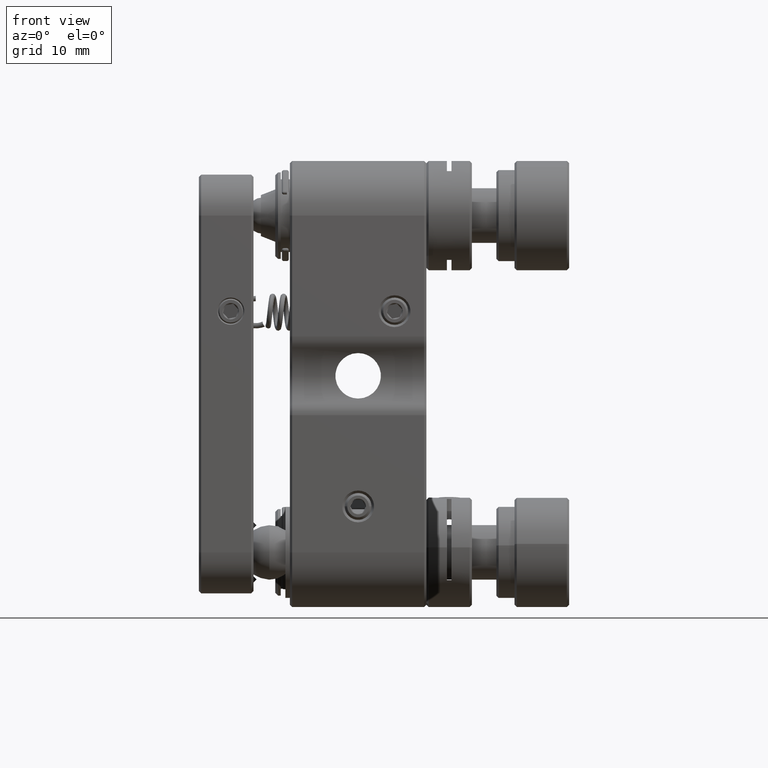
[diagram: clean part render]
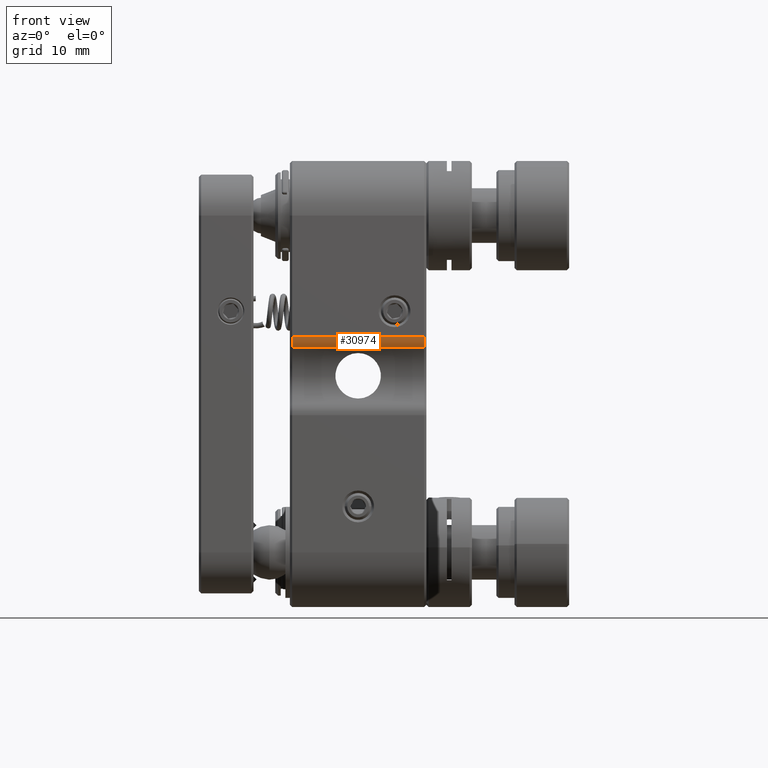
[diagram: same view with one face highlighted and labeled with its STEP entity id]
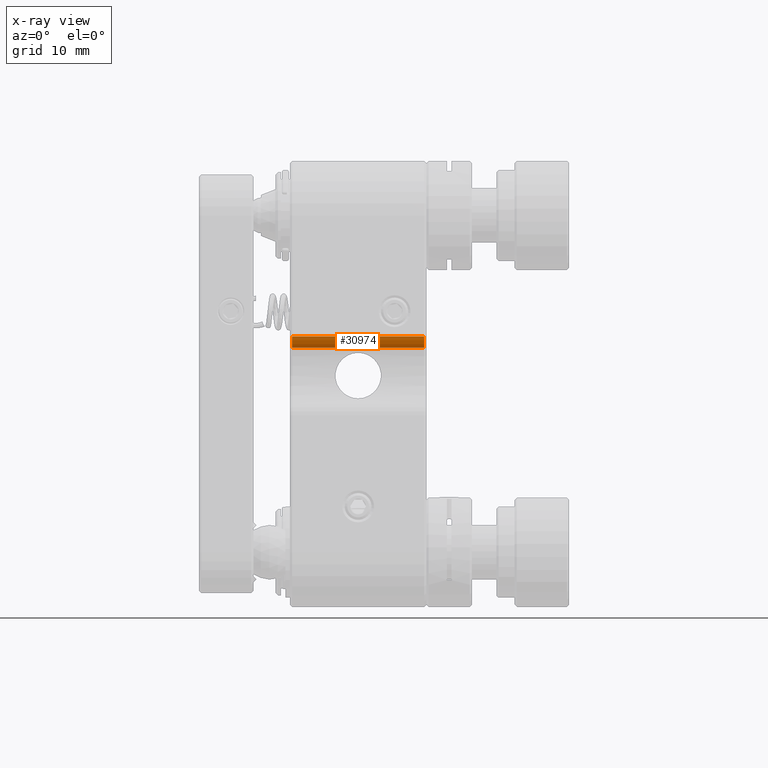
[diagram: x-ray of the same camera — body ghosted, the highlighted face saturated]
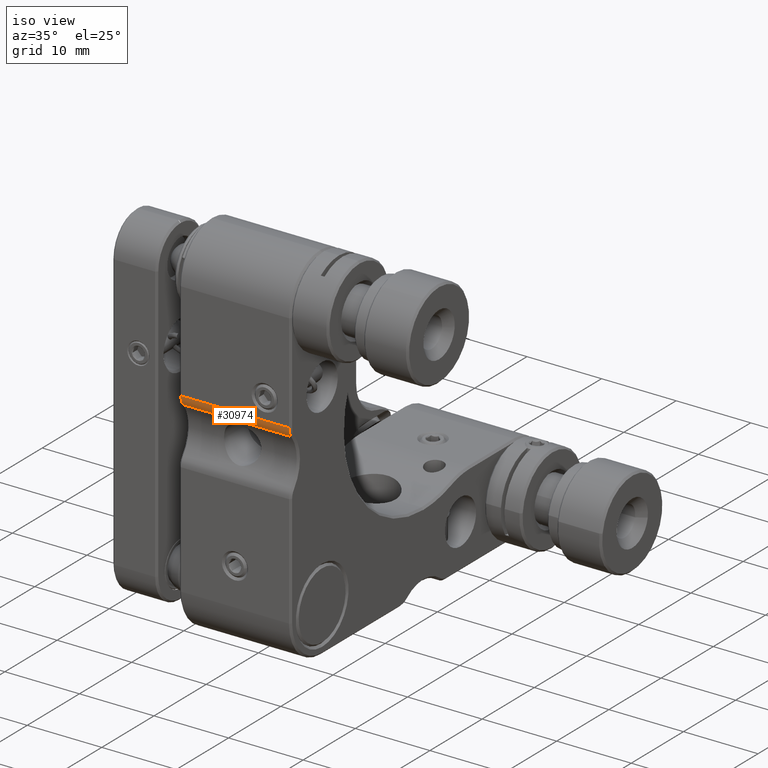
[diagram: same view with one face highlighted and labeled with its STEP entity id]
A machine part, front view. The second image highlights one B-rep face of the part: STEP entity #30974.
The next image is the same camera in x-ray: the body ghosted, the highlighted face saturated — about 0% of this face is hidden behind the body in this view.
A second angle (iso view) of the same face is appended — the face is thin or edge-on in the first view.
In plain terms, the highlighted cylindrical surface (edge-blend (fillet) strip) has radius 2 mm, axis along (1, -0, -0).
Its self-contained STEP definition (entity closure, byte-faithful):
#31 = DIRECTION ( 'NONE',  ( -1.000000000000000000, 0.000000000000000000, 0.000000000000000000 ) ) ;
#3069 = DIRECTION ( 'NONE',  ( 0.000000000000000000, 1.734723475976807094E-15, -1.000000000000000000 ) ) ;
#3220 = CARTESIAN_POINT ( 'NONE',  ( -7.500000000000000000, -24.07142857142859071, 3.992947870658637211 ) ) ;
#3375 = AXIS2_PLACEMENT_3D ( 'NONE', #19299, #39348, #3069 ) ;
#4508 = EDGE_CURVE ( 'NONE', #18819, #41255, #25190, .T. ) ;
#7003 = AXIS2_PLACEMENT_3D ( 'NONE', #30993, #41460, #41035 ) ;
#8654 = DIRECTION ( 'NONE',  ( 1.000000000000000000, 0.000000000000000000, -0.000000000000000000 ) ) ;
#10411 = CARTESIAN_POINT ( 'NONE',  ( -7.249999999999992895, -24.49999999999999289, 5.230127018922088311 ) ) ;
#10462 = DIRECTION ( 'NONE',  ( 1.000000000000000000, 0.000000000000000000, 0.000000000000000000 ) ) ;
#11853 = LINE ( 'NONE', #24873, #36083 ) ;
#12642 = ORIENTED_EDGE ( 'NONE', *, *, #33625, .F. ) ;
#13870 = VERTEX_POINT ( 'NONE', #28786 ) ;
#15417 = FACE_OUTER_BOUND ( 'NONE', #16788, .T. ) ;
#15481 = VECTOR ( 'NONE', #31, 1000.000000000000000 ) ;
#16788 = EDGE_LOOP ( 'NONE', ( #34089, #32060, #12642, #27347 ) ) ;
#17071 = DIRECTION ( 'NONE',  ( 0.000000000000000000, 0.000000000000000000, -1.000000000000000000 ) ) ;
#17785 = EDGE_CURVE ( 'NONE', #21226, #41255, #11853, .T. ) ;
#18819 = VERTEX_POINT ( 'NONE', #19486 ) ;
#19299 = CARTESIAN_POINT ( 'NONE',  ( 7.249999999999985789, -22.49999999999999289, 5.230127018922088311 ) ) ;
#19486 = CARTESIAN_POINT ( 'NONE',  ( 7.249999999999985789, -24.07142857142859071, 3.992947870658637211 ) ) ;
#21226 = VERTEX_POINT ( 'NONE', #10411 ) ;
#24873 = CARTESIAN_POINT ( 'NONE',  ( 7.500000000000000000, -24.49999999999999289, 5.230127018922088311 ) ) ;
#25190 = CIRCLE ( 'NONE', #3375, 2.000000000000000000 ) ;
#27347 = ORIENTED_EDGE ( 'NONE', *, *, #4508, .T. ) ;
#28210 = CIRCLE ( 'NONE', #33562, 2.000000000000000000 ) ;
#28440 = CYLINDRICAL_SURFACE ( 'NONE', #7003, 2.000000000000000000 ) ;
#28786 = CARTESIAN_POINT ( 'NONE',  ( -7.249999999999992895, -24.07142857142859071, 3.992947870658637211 ) ) ;
#28999 = EDGE_CURVE ( 'NONE', #21226, #13870, #28210, .T. ) ;
#29895 = CARTESIAN_POINT ( 'NONE',  ( -7.249999999999992895, -22.49999999999999289, 5.230127018922088311 ) ) ;
#30974 = ADVANCED_FACE ( 'NONE', ( #15417 ), #28440, .T. ) ;
#30993 = CARTESIAN_POINT ( 'NONE',  ( -7.500000000000000000, -22.49999999999999289, 5.230127018922088311 ) ) ;
#32060 = ORIENTED_EDGE ( 'NONE', *, *, #28999, .T. ) ;
#32470 = LINE ( 'NONE', #3220, #15481 ) ;
#33328 = CARTESIAN_POINT ( 'NONE',  ( 7.249999999999985789, -24.49999999999999289, 5.230127018922088311 ) ) ;
#33562 = AXIS2_PLACEMENT_3D ( 'NONE', #29895, #10462, #17071 ) ;
#33625 = EDGE_CURVE ( 'NONE', #18819, #13870, #32470, .T. ) ;
#34089 = ORIENTED_EDGE ( 'NONE', *, *, #17785, .F. ) ;
#36083 = VECTOR ( 'NONE', #8654, 1000.000000000000000 ) ;
#39348 = DIRECTION ( 'NONE',  ( -1.000000000000000000, 0.000000000000000000, 0.000000000000000000 ) ) ;
#41035 = DIRECTION ( 'NONE',  ( 0.000000000000000000, 0.000000000000000000, -1.000000000000000000 ) ) ;
#41255 = VERTEX_POINT ( 'NONE', #33328 ) ;
#41460 = DIRECTION ( 'NONE',  ( 1.000000000000000000, -0.000000000000000000, -0.000000000000000000 ) ) ;